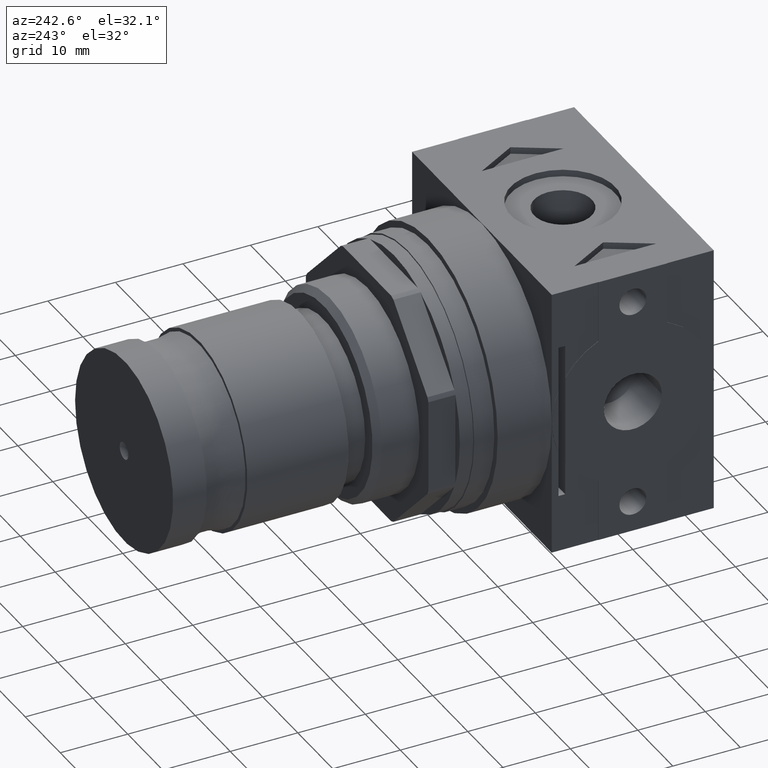
[diagram: clean part render]
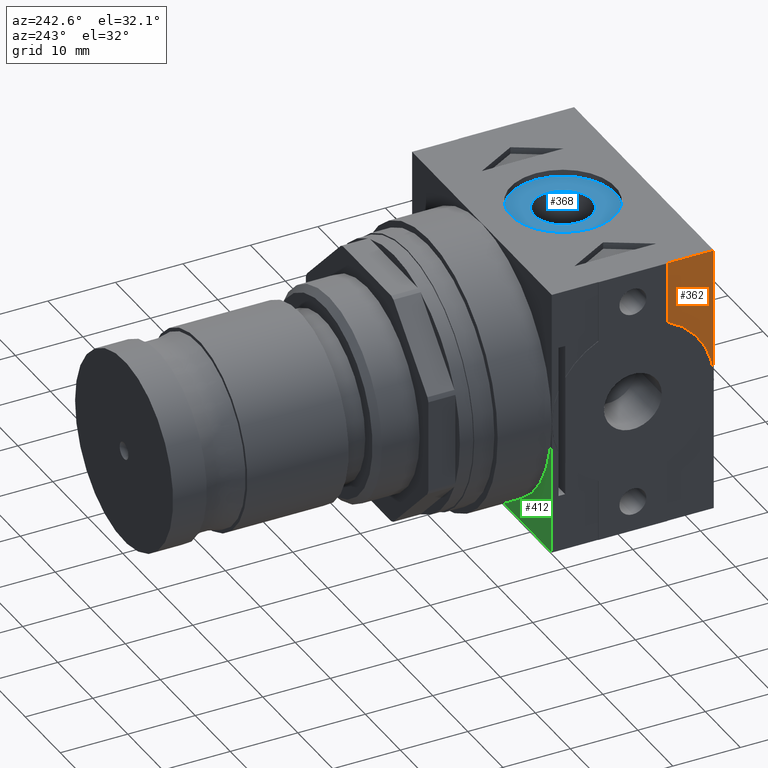
[diagram: same view with three faces highlighted in distinct colors, each labeled with its STEP entity id]
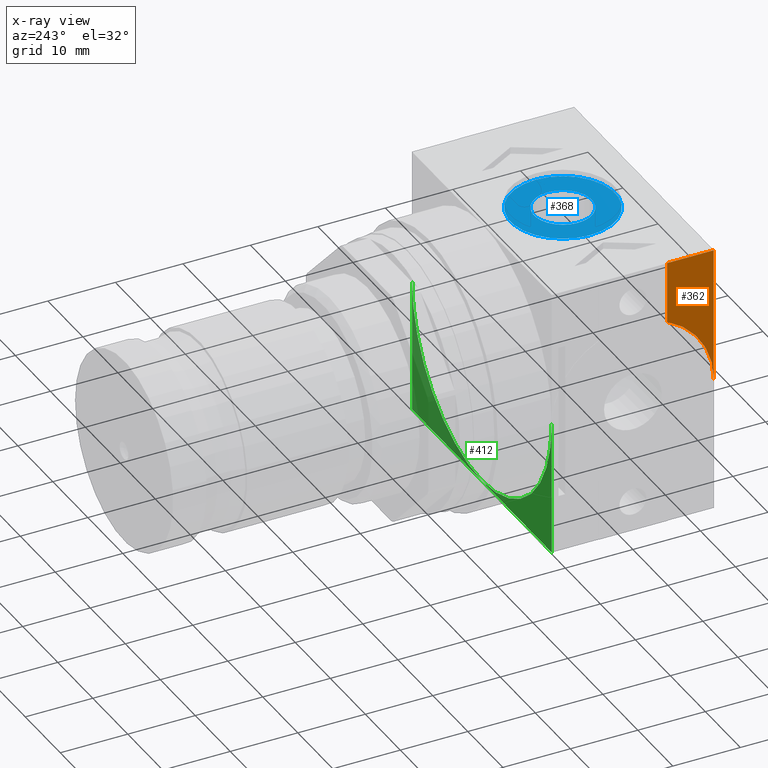
[diagram: x-ray of the same camera — body ghosted, the three highlighted faces saturated]
A machine part, auxiliary view with three faces highlighted in distinct colors.
The next image is the same camera in x-ray (body ghosted, the three faces saturated) — at least one of them is partly hidden behind the body in this view.
Their STEP definitions:

[orange] entity #362 — the highlighted planar face has unit normal (1, 0, 0).
#362 = ADVANCED_FACE( '', ( #758 ), #759, .F. );
#758 = FACE_OUTER_BOUND( '', #1203, .T. );
#759 = PLANE( '', #1204 );
#1203 = EDGE_LOOP( '', ( #1998, #1999, #2000, #2001 ) );
#1204 = AXIS2_PLACEMENT_3D( '', #2002, #2003, #2004 );
#1998 = ORIENTED_EDGE( '', *, *, #2634, .F. );
#1999 = ORIENTED_EDGE( '', *, *, #2719, .F. );
#2000 = ORIENTED_EDGE( '', *, *, #2702, .F. );
#2001 = ORIENTED_EDGE( '', *, *, #2668, .F. );
#2002 = CARTESIAN_POINT( '', ( -19.9500000000000, 0.000000000000000, 0.000000000000000 ) );
#2003 = DIRECTION( '', ( 1.00000000000000, 0.000000000000000, 0.000000000000000 ) );
#2004 = DIRECTION( '', ( 0.000000000000000, 0.000000000000000, -1.00000000000000 ) );
#2634 = EDGE_CURVE( '', #3154, #3157, #3158, .T. );
#2668 = EDGE_CURVE( '', #3157, #3204, #3205, .T. );
#2702 = EDGE_CURVE( '', #3204, #3235, #3256, .T. );
#2719 = EDGE_CURVE( '', #3235, #3154, #3280, .F. );
#3154 = VERTEX_POINT( '', #3835 );
#3157 = VERTEX_POINT( '', #3839 );
#3158 = LINE( '', #3840, #3841 );
#3204 = VERTEX_POINT( '', #3903 );
#3205 = LINE( '', #3904, #3905 );
#3235 = VERTEX_POINT( '', #3945 );
#3256 = LINE( '', #3973, #3974 );
#3280 = CIRCLE( '', #4009, 12.0000000000000 );
#3835 = CARTESIAN_POINT( '', ( -19.9500000000000, -5.10000000000000, 10.8623201941390 ) );
#3839 = CARTESIAN_POINT( '', ( -19.9500000000000, -5.10000000000000, 20.0000000000000 ) );
#3840 = CARTESIAN_POINT( '', ( -19.9500000000000, -5.10000000000000, 0.000000000000000 ) );
#3841 = VECTOR( '', #4409, 1000.00000000000 );
#3903 = CARTESIAN_POINT( '', ( -19.9500000000000, -12.0000000000000, 20.0000000000000 ) );
#3904 = CARTESIAN_POINT( '', ( -19.9500000000000, 12.0000000000000, 20.0000000000000 ) );
#3905 = VECTOR( '', #4444, 1000.00000000000 );
#3945 = CARTESIAN_POINT( '', ( -19.9500000000000, -12.0000000000000, 1.73472347597681E-015 ) );
#3973 = CARTESIAN_POINT( '', ( -19.9500000000000, -12.0000000000000, 20.0000000000000 ) );
#3974 = VECTOR( '', #4477, 1000.00000000000 );
#4009 = AXIS2_PLACEMENT_3D( '', #4492, #4493, #4494 );
#4409 = DIRECTION( '', ( 0.000000000000000, -0.000000000000000, 1.00000000000000 ) );
#4444 = DIRECTION( '', ( 0.000000000000000, -1.00000000000000, 0.000000000000000 ) );
#4477 = DIRECTION( '', ( 0.000000000000000, 0.000000000000000, -1.00000000000000 ) );
#4492 = CARTESIAN_POINT( '', ( -19.9500000000000, 8.67361737988404E-015, 1.73472347597681E-015 ) );
#4493 = DIRECTION( '', ( 1.00000000000000, 0.000000000000000, 0.000000000000000 ) );
#4494 = DIRECTION( '', ( 0.000000000000000, 0.000000000000000, -1.00000000000000 ) );

[blue] entity #368 — the highlighted planar face has unit normal (0, 0, 1).
#368 = ADVANCED_FACE( '', ( #767, #768 ), #769, .T. );
#767 = FACE_BOUND( '', #1212, .T. );
#768 = FACE_OUTER_BOUND( '', #1213, .T. );
#769 = PLANE( '', #1214 );
#1212 = EDGE_LOOP( '', ( #2021 ) );
#1213 = EDGE_LOOP( '', ( #2022 ) );
#1214 = AXIS2_PLACEMENT_3D( '', #2023, #2024, #2025 );
#2021 = ORIENTED_EDGE( '', *, *, #2726, .T. );
#2022 = ORIENTED_EDGE( '', *, *, #2650, .F. );
#2023 = CARTESIAN_POINT( '', ( 0.000000000000000, 7.75000000000000, 19.0000000000000 ) );
#2024 = DIRECTION( '', ( 0.000000000000000, 0.000000000000000, 1.00000000000000 ) );
#2025 = DIRECTION( '', ( 1.00000000000000, 0.000000000000000, -0.000000000000000 ) );
#2650 = EDGE_CURVE( '', #3179, #3179, #3180, .T. );
#2726 = EDGE_CURVE( '', #3287, #3287, #3288, .T. );
#3179 = VERTEX_POINT( '', #3867 );
#3180 = CIRCLE( '', #3868, 7.75000000000000 );
#3287 = VERTEX_POINT( '', #4017 );
#3288 = CIRCLE( '', #4018, 4.28300000000000 );
#3867 = CARTESIAN_POINT( '', ( -7.75000000000000, 0.000000000000000, 19.0000000000000 ) );
#3868 = AXIS2_PLACEMENT_3D( '', #4424, #4425, #4426 );
#4017 = CARTESIAN_POINT( '', ( -4.28300000000000, 0.000000000000000, 19.0000000000000 ) );
#4018 = AXIS2_PLACEMENT_3D( '', #4502, #4503, #4504 );
#4424 = CARTESIAN_POINT( '', ( 0.000000000000000, 0.000000000000000, 19.0000000000000 ) );
#4425 = DIRECTION( '', ( -0.000000000000000, 0.000000000000000, -1.00000000000000 ) );
#4426 = DIRECTION( '', ( -1.00000000000000, 0.000000000000000, 0.000000000000000 ) );
#4502 = CARTESIAN_POINT( '', ( 0.000000000000000, 0.000000000000000, 19.0000000000000 ) );
#4503 = DIRECTION( '', ( -0.000000000000000, 0.000000000000000, -1.00000000000000 ) );
#4504 = DIRECTION( '', ( -1.00000000000000, 0.000000000000000, 0.000000000000000 ) );

[green] entity #412 — the highlighted planar face has unit normal (0, -1, 0).
#412 = ADVANCED_FACE( '', ( #850 ), #851, .F. );
#850 = FACE_OUTER_BOUND( '', #1295, .T. );
#851 = PLANE( '', #1296 );
#1295 = EDGE_LOOP( '', ( #2215, #2216, #2217, #2218 ) );
#1296 = AXIS2_PLACEMENT_3D( '', #2219, #2220, #2221 );
#2215 = ORIENTED_EDGE( '', *, *, #2515, .F. );
#2216 = ORIENTED_EDGE( '', *, *, #2712, .F. );
#2217 = ORIENTED_EDGE( '', *, *, #2746, .T. );
#2218 = ORIENTED_EDGE( '', *, *, #2778, .T. );
#2219 = CARTESIAN_POINT( '', ( 19.9500000000000, 12.0000000000000, -20.0000000000000 ) );
#2220 = DIRECTION( '', ( 0.000000000000000, -1.00000000000000, 0.000000000000000 ) );
#2221 = DIRECTION( '', ( 0.000000000000000, 0.000000000000000, -1.00000000000000 ) );
#2515 = EDGE_CURVE( '', #2923, #2832, #2975, .F. );
#2712 = EDGE_CURVE( '', #3270, #2923, #3272, .T. );
#2746 = EDGE_CURVE( '', #3270, #3312, #3314, .T. );
#2778 = EDGE_CURVE( '', #3312, #2832, #3352, .T. );
#2832 = VERTEX_POINT( '', #3412 );
#2923 = VERTEX_POINT( '', #3534 );
#2975 = CIRCLE( '', #3603, 19.9500000000000 );
#3270 = VERTEX_POINT( '', #3993 );
#3272 = LINE( '', #3996, #3997 );
#3312 = VERTEX_POINT( '', #4046 );
#3314 = LINE( '', #4049, #4050 );
#3352 = LINE( '', #4101, #4102 );
#3412 = CARTESIAN_POINT( '', ( -19.9500000000000, 12.0000000000000, 0.000000000000000 ) );
#3534 = CARTESIAN_POINT( '', ( 19.9500000000000, 12.0000000000000, -1.84242419865797E-015 ) );
#3603 = AXIS2_PLACEMENT_3D( '', #4247, #4248, #4249 );
#3993 = CARTESIAN_POINT( '', ( 19.9500000000000, 12.0000000000000, -20.0000000000000 ) );
#3996 = CARTESIAN_POINT( '', ( 19.9500000000000, 12.0000000000000, -20.0000000000000 ) );
#3997 = VECTOR( '', #4487, 1000.00000000000 );
#4046 = CARTESIAN_POINT( '', ( -19.9500000000000, 12.0000000000000, -20.0000000000000 ) );
#4049 = CARTESIAN_POINT( '', ( 19.9500000000000, 12.0000000000000, -20.0000000000000 ) );
#4050 = VECTOR( '', #4525, 1000.00000000000 );
#4101 = CARTESIAN_POINT( '', ( -19.9500000000000, 12.0000000000000, -20.0000000000000 ) );
#4102 = VECTOR( '', #4554, 1000.00000000000 );
#4247 = CARTESIAN_POINT( '', ( 0.000000000000000, 12.0000000000000, 0.000000000000000 ) );
#4248 = DIRECTION( '', ( 0.000000000000000, -1.00000000000000, 0.000000000000000 ) );
#4249 = DIRECTION( '', ( 0.000000000000000, 0.000000000000000, -1.00000000000000 ) );
#4487 = DIRECTION( '', ( 0.000000000000000, 0.000000000000000, 1.00000000000000 ) );
#4525 = DIRECTION( '', ( -1.00000000000000, -0.000000000000000, -0.000000000000000 ) );
#4554 = DIRECTION( '', ( 0.000000000000000, 0.000000000000000, 1.00000000000000 ) );